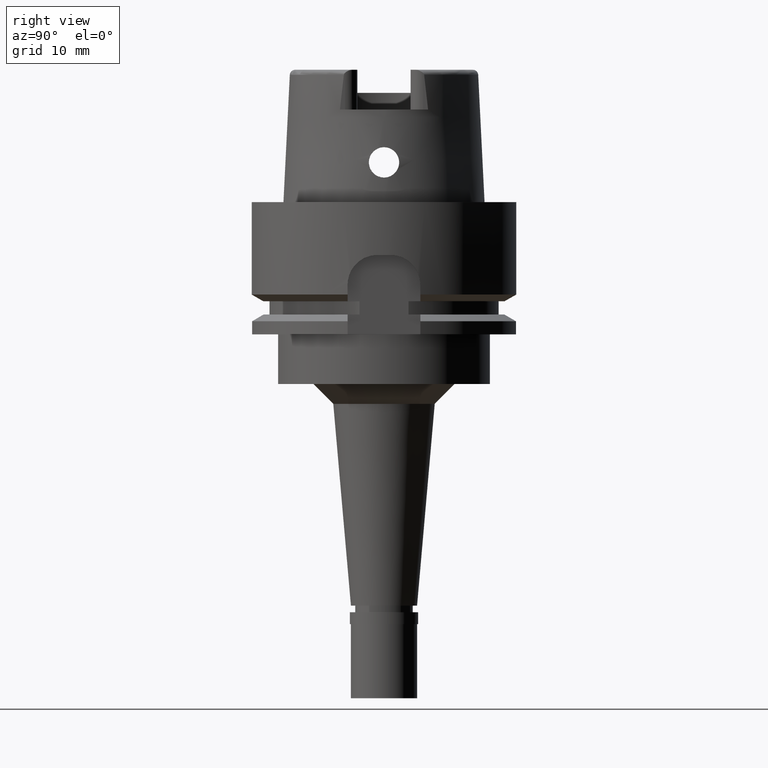
[diagram: clean part render]
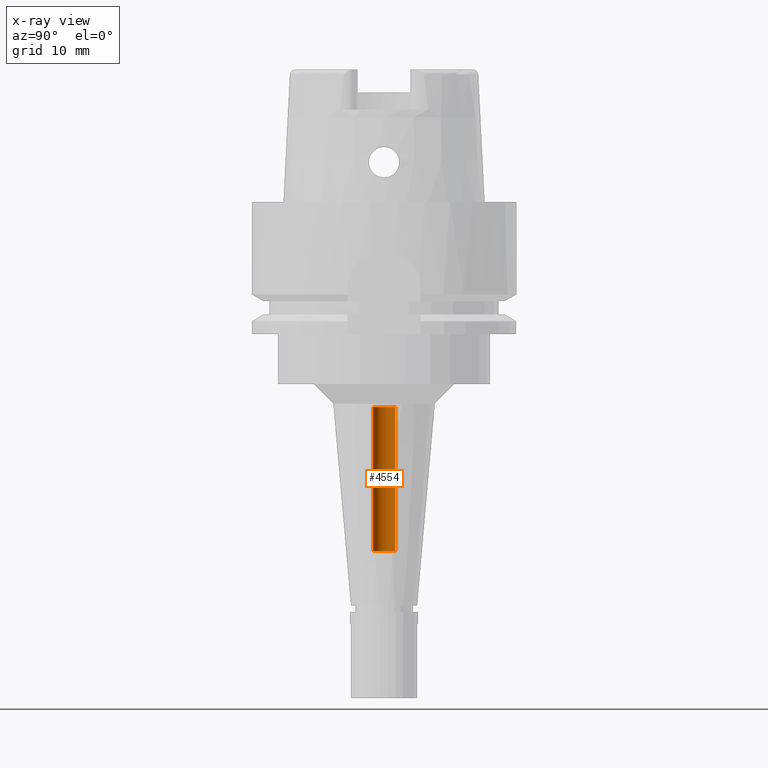
[diagram: x-ray — body ghosted, one internal face saturated and labeled with its STEP entity id]
A machine part, right view, then the same camera in x-ray: the body is ghosted and one INTERNAL B-rep face — a face not visible from any outside direction — is saturated and labeled: STEP entity #4554.
In plain terms, the highlighted cylindrical surface (edge-blend (fillet) strip) has radius 1.7 mm, axis along (0, 0, -1).
Its self-contained STEP definition (entity closure, byte-faithful):
#236 = DIRECTION ( 'NONE',  ( 0.0000000000000000000, 0.0000000000000000000, 1.000000000000000000 ) ) ;
#328 = ORIENTED_EDGE ( 'NONE', *, *, #2260, .T. ) ;
#405 = DIRECTION ( 'NONE',  ( 0.0000000000000000000, 0.0000000000000000000, -1.000000000000000000 ) ) ;
#519 = CIRCLE ( 'NONE', #1215, 1.699999999999999956 ) ;
#526 = DIRECTION ( 'NONE',  ( 0.0000000000000000000, 0.0000000000000000000, -1.000000000000000000 ) ) ;
#625 = AXIS2_PLACEMENT_3D ( 'NONE', #3031, #526, #4670 ) ;
#634 = CARTESIAN_POINT ( 'NONE',  ( 0.0000000000000000000, 1.699999999999999956, -31.00000000000000000 ) ) ;
#685 = EDGE_CURVE ( 'NONE', #4647, #4411, #1086, .T. ) ;
#1085 = CARTESIAN_POINT ( 'NONE',  ( 0.0000000000000000000, -1.699999999999999956, -31.00000000000000000 ) ) ;
#1086 = LINE ( 'NONE', #4194, #4284 ) ;
#1156 = CARTESIAN_POINT ( 'NONE',  ( 0.0000000000000000000, 1.699999999999999956, -52.79999999999999716 ) ) ;
#1215 = AXIS2_PLACEMENT_3D ( 'NONE', #1711, #3687, #4504 ) ;
#1577 = CARTESIAN_POINT ( 'NONE',  ( 0.0000000000000000000, -1.699999999999999956, -52.79999999999999716 ) ) ;
#1711 = CARTESIAN_POINT ( 'NONE',  ( 0.0000000000000000000, 1.525481285357999688E-14, -31.00000000000000000 ) ) ;
#2080 = VECTOR ( 'NONE', #236, 1000.000000000000000 ) ;
#2097 = AXIS2_PLACEMENT_3D ( 'NONE', #4997, #405, #2846 ) ;
#2173 = FACE_OUTER_BOUND ( 'NONE', #4123, .T. ) ;
#2260 = EDGE_CURVE ( 'NONE', #4647, #2411, #4718, .T. ) ;
#2411 = VERTEX_POINT ( 'NONE', #1156 ) ;
#2558 = ORIENTED_EDGE ( 'NONE', *, *, #685, .F. ) ;
#2846 = DIRECTION ( 'NONE',  ( 0.0000000000000000000, -1.000000000000000000, 0.0000000000000000000 ) ) ;
#2853 = ORIENTED_EDGE ( 'NONE', *, *, #3854, .T. ) ;
#3031 = CARTESIAN_POINT ( 'NONE',  ( 0.0000000000000000000, 1.525481285357999688E-14, 24.56500000000000128 ) ) ;
#3158 = LINE ( 'NONE', #3187, #2080 ) ;
#3187 = CARTESIAN_POINT ( 'NONE',  ( 0.0000000000000000000, 1.699999999999999956, -52.79999999999999716 ) ) ;
#3687 = DIRECTION ( 'NONE',  ( 0.0000000000000000000, 0.0000000000000000000, 1.000000000000000000 ) ) ;
#3854 = EDGE_CURVE ( 'NONE', #5227, #4411, #519, .T. ) ;
#4123 = EDGE_LOOP ( 'NONE', ( #2853, #2558, #328, #4137 ) ) ;
#4137 = ORIENTED_EDGE ( 'NONE', *, *, #4619, .T. ) ;
#4194 = CARTESIAN_POINT ( 'NONE',  ( 0.0000000000000000000, -1.699999999999999956, -52.79999999999999716 ) ) ;
#4248 = DIRECTION ( 'NONE',  ( 0.0000000000000000000, 0.0000000000000000000, 1.000000000000000000 ) ) ;
#4284 = VECTOR ( 'NONE', #4248, 1000.000000000000000 ) ;
#4411 = VERTEX_POINT ( 'NONE', #1085 ) ;
#4504 = DIRECTION ( 'NONE',  ( 0.0000000000000000000, 1.000000000000000000, 0.0000000000000000000 ) ) ;
#4554 = ADVANCED_FACE ( 'NONE', ( #2173 ), #5045, .F. ) ;
#4619 = EDGE_CURVE ( 'NONE', #2411, #5227, #3158, .T. ) ;
#4647 = VERTEX_POINT ( 'NONE', #1577 ) ;
#4670 = DIRECTION ( 'NONE',  ( 0.0000000000000000000, -1.000000000000000000, 0.0000000000000000000 ) ) ;
#4718 = CIRCLE ( 'NONE', #2097, 1.699999999999999956 ) ;
#4997 = CARTESIAN_POINT ( 'NONE',  ( 0.0000000000000000000, 1.525481285357999688E-14, -52.79999999999999716 ) ) ;
#5045 = CYLINDRICAL_SURFACE ( 'NONE', #625, 1.699999999999999956 ) ;
#5227 = VERTEX_POINT ( 'NONE', #634 ) ;